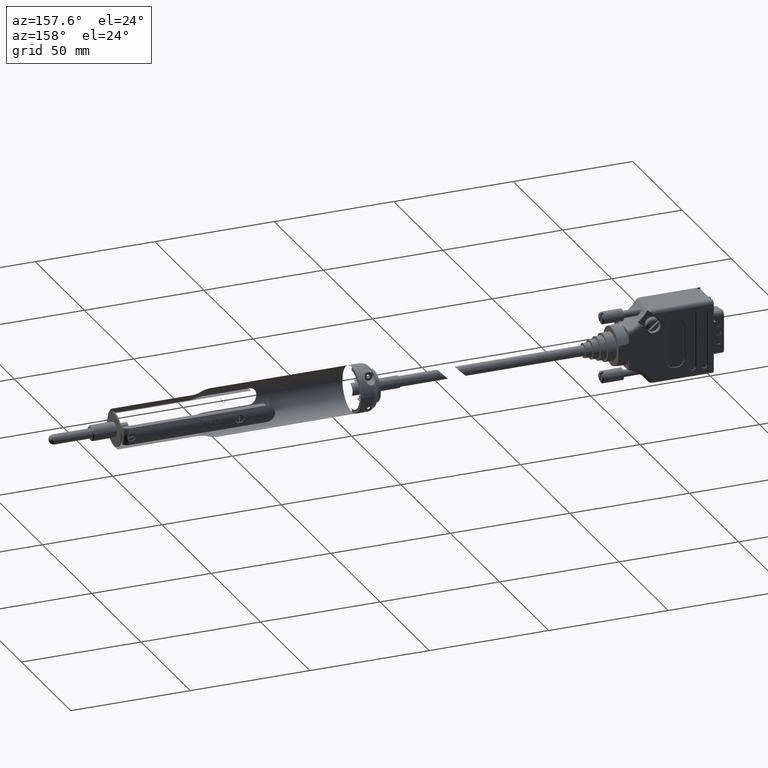
[diagram: clean part render]
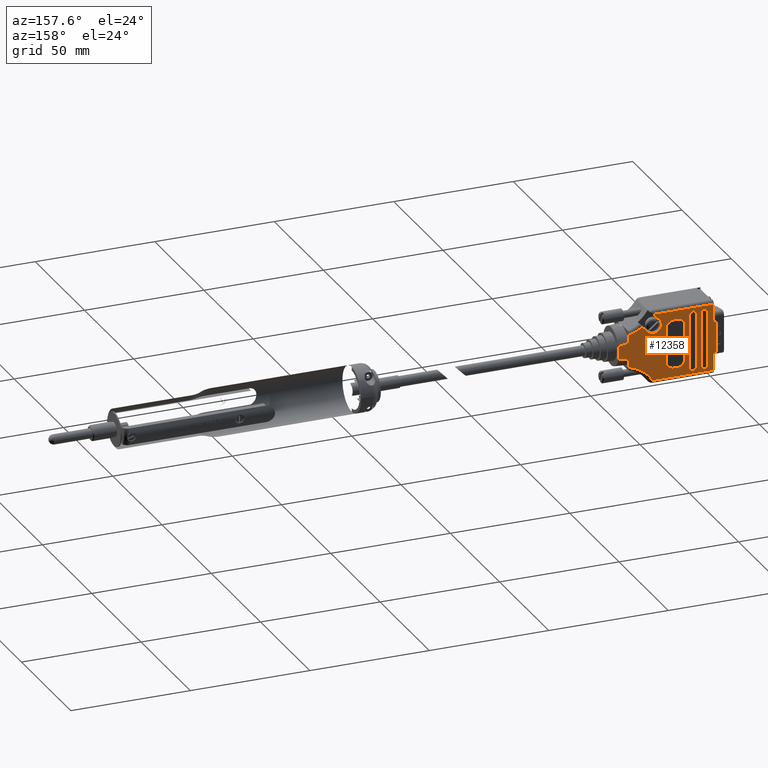
[diagram: same view with one face highlighted and labeled with its STEP entity id]
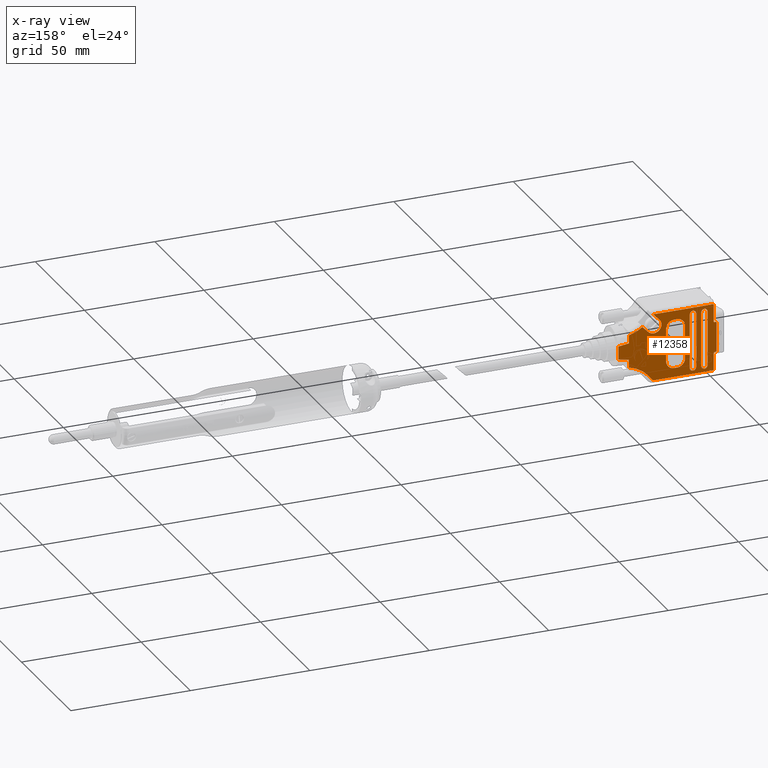
[diagram: x-ray of the same camera — body ghosted, the highlighted face saturated]
A machine part, auxiliary view. The second image highlights one B-rep face of the part: STEP entity #12358.
The next image is the same camera in x-ray: the body ghosted, the highlighted face saturated — about 0% of this face is hidden behind the body in this view.
In plain terms, the highlighted planar face has unit normal (0, 1, 0).
Its self-contained STEP definition (entity closure, byte-faithful):
#599 = DIRECTION ( 'NONE',  ( 0.0000000000000000000, 1.000000000000000000, 0.0000000000000000000 ) ) ;
#600 = DIRECTION ( 'NONE',  ( 0.0000000000000000000, 0.0000000000000000000, 1.000000000000000000 ) ) ;
#619 = DIRECTION ( 'NONE',  ( -0.0000000000000000000, -1.000000000000000000, -0.0000000000000000000 ) ) ;
#636 = CARTESIAN_POINT ( 'NONE',  ( -123.0914605572637700, 7.493000000000001200, -13.46799999999999800 ) ) ;
#700 = CARTESIAN_POINT ( 'NONE',  ( -109.3504522141959800, 7.493000000000001200, -22.24845647764062700 ) ) ;
#735 = DIRECTION ( 'NONE',  ( -1.000000000000000000, 0.0000000000000000000, 0.0000000000000000000 ) ) ;
#763 = CARTESIAN_POINT ( 'NONE',  ( -148.3707333333333300, 7.493000000000001200, 15.50000000000000000 ) ) ;
#766 = DIRECTION ( 'NONE',  ( -1.000000000000000000, 0.0000000000000000000, 0.0000000000000000000 ) ) ;
#775 = CARTESIAN_POINT ( 'NONE',  ( -148.3707333333333300, 7.493000000000001200, -13.97599999999999900 ) ) ;
#804 = DIRECTION ( 'NONE',  ( -1.000000000000000000, 0.0000000000000000000, -1.756815430009172300E-015 ) ) ;
#851 = CARTESIAN_POINT ( 'NONE',  ( -123.2755333333333400, 7.493000000000001200, 9.093200000000003100 ) ) ;
#852 = DIRECTION ( 'NONE',  ( -0.0000000000000000000, -1.000000000000000000, -0.0000000000000000000 ) ) ;
#853 = DIRECTION ( 'NONE',  ( -1.000000000000000000, 0.0000000000000000000, 0.0000000000000000000 ) ) ;
#862 = DIRECTION ( 'NONE',  ( 0.0000000000000000000, 0.0000000000000000000, 1.000000000000000000 ) ) ;
#866 = CARTESIAN_POINT ( 'NONE',  ( -148.3707333333333300, 7.493000000000001200, 15.50000000000000000 ) ) ;
#878 = CARTESIAN_POINT ( 'NONE',  ( -148.3707333333333300, 7.493000000000001200, 6.349999999999999600 ) ) ;
#879 = CARTESIAN_POINT ( 'NONE',  ( -148.7517333333333300, 7.493000000000001200, 6.730999999999999900 ) ) ;
#880 = DIRECTION ( 'NONE',  ( -0.0000000000000000000, -1.000000000000000000, -0.0000000000000000000 ) ) ;
#881 = DIRECTION ( 'NONE',  ( -1.000000000000000000, 0.0000000000000000000, 0.0000000000000000000 ) ) ;
#883 = DIRECTION ( 'NONE',  ( -1.000000000000000000, 0.0000000000000000000, 0.0000000000000000000 ) ) ;
#892 = CARTESIAN_POINT ( 'NONE',  ( -149.1581333333333200, 7.493000000000001200, 5.968999999999999400 ) ) ;
#893 = DIRECTION ( 'NONE',  ( 0.0000000000000000000, 1.000000000000000000, 0.0000000000000000000 ) ) ;
#894 = DIRECTION ( 'NONE',  ( -1.000000000000000000, 0.0000000000000000000, 0.0000000000000000000 ) ) ;
#895 = DIRECTION ( 'NONE',  ( 0.0000000000000000000, -0.0000000000000000000, -1.000000000000000000 ) ) ;
#898 = CARTESIAN_POINT ( 'NONE',  ( -149.5391333333333500, 7.493000000000001200, 6.349999999999999600 ) ) ;
#906 = CARTESIAN_POINT ( 'NONE',  ( -149.1581333333333200, 7.493000000000001200, -5.969000000000000300 ) ) ;
#907 = DIRECTION ( 'NONE',  ( 0.0000000000000000000, 1.000000000000000000, 0.0000000000000000000 ) ) ;
#908 = DIRECTION ( 'NONE',  ( -1.000000000000000000, 0.0000000000000000000, 0.0000000000000000000 ) ) ;
#909 = DIRECTION ( 'NONE',  ( -1.000000000000000000, 0.0000000000000000000, 0.0000000000000000000 ) ) ;
#910 = CARTESIAN_POINT ( 'NONE',  ( -148.3707333333333300, 7.493000000000001200, -6.349999999999999600 ) ) ;
#941 = CARTESIAN_POINT ( 'NONE',  ( -148.7517333333333300, 7.493000000000001200, -6.731000000000000800 ) ) ;
#943 = DIRECTION ( 'NONE',  ( -0.0000000000000000000, -1.000000000000000000, -0.0000000000000000000 ) ) ;
#944 = DIRECTION ( 'NONE',  ( -1.000000000000000000, 0.0000000000000000000, 0.0000000000000000000 ) ) ;
#979 = CARTESIAN_POINT ( 'NONE',  ( -112.8869333333333500, 7.493000000000001200, 13.46799999999999800 ) ) ;
#981 = DIRECTION ( 'NONE',  ( 0.0000000000000000000, 0.0000000000000000000, 1.000000000000000000 ) ) ;
#982 = CARTESIAN_POINT ( 'NONE',  ( -109.9380416134310100, 7.493000000000001200, 3.025334475568169300 ) ) ;
#997 = CARTESIAN_POINT ( 'NONE',  ( -111.4119144322817000, 7.493000000000001200, 3.223821329420901700 ) ) ;
#1002 = CARTESIAN_POINT ( 'NONE',  ( -108.4673333333333300, 7.493000000000001200, 2.805521698365618800 ) ) ;
#1003 = CARTESIAN_POINT ( 'NONE',  ( -112.8869333333333500, 7.493000000000001200, 3.410426141520471100 ) ) ;
#1027 = DIRECTION ( 'NONE',  ( 0.0000000000000000000, 0.0000000000000000000, -1.000000000000000000 ) ) ;
#1031 = CARTESIAN_POINT ( 'NONE',  ( -108.4673333333333300, 7.493000000000001200, 8.000999999999999400 ) ) ;
#1041 = CARTESIAN_POINT ( 'NONE',  ( -111.4119144322816900, 7.493000000000001200, -3.223821329420903000 ) ) ;
#1042 = CARTESIAN_POINT ( 'NONE',  ( -109.9380416134310100, 7.493000000000001200, -3.025334475568167500 ) ) ;
#1049 = CARTESIAN_POINT ( 'NONE',  ( -112.8869333333333500, 7.493000000000001200, -3.410426141520471100 ) ) ;
#1051 = CARTESIAN_POINT ( 'NONE',  ( -108.4673333333333300, 7.493000000000001200, -2.805521698365618800 ) ) ;
#1069 = CARTESIAN_POINT ( 'NONE',  ( -112.8869333333333500, 7.493000000000001200, 13.46799999999999800 ) ) ;
#1076 = DIRECTION ( 'NONE',  ( 0.0000000000000000000, 0.0000000000000000000, 1.000000000000000000 ) ) ;
#2050 = AXIS2_PLACEMENT_3D ( 'NONE', #851, #852, #853 ) ;
#2056 = AXIS2_PLACEMENT_3D ( 'NONE', #879, #880, #881 ) ;
#2057 = AXIS2_PLACEMENT_3D ( 'NONE', #892, #893, #894 ) ;
#2059 = AXIS2_PLACEMENT_3D ( 'NONE', #906, #907, #908 ) ;
#2062 = AXIS2_PLACEMENT_3D ( 'NONE', #941, #943, #944 ) ;
#4150 = CIRCLE ( 'NONE', #21862, 1.358899999999996200 ) ;
#4151 = LINE ( 'NONE', #16288, #4154 ) ;
#4152 = CIRCLE ( 'NONE', #21868, 1.358899999999996200 ) ;
#4154 = VECTOR ( 'NONE', #16278, 1000.000000000000000 ) ;
#4156 = LINE ( 'NONE', #16293, #4158 ) ;
#4158 = VECTOR ( 'NONE', #16292, 1000.000000000000000 ) ;
#4180 = CIRCLE ( 'NONE', #21883, 1.358899999999996200 ) ;
#4181 = LINE ( 'NONE', #16338, #4184 ) ;
#4182 = CIRCLE ( 'NONE', #21889, 1.358899999999996200 ) ;
#4184 = VECTOR ( 'NONE', #16328, 1000.000000000000000 ) ;
#4186 = LINE ( 'NONE', #16343, #4188 ) ;
#4187 = LINE ( 'NONE', #16350, #4190 ) ;
#4188 = VECTOR ( 'NONE', #16342, 1000.000000000000000 ) ;
#4189 = CIRCLE ( 'NONE', #21892, 15.79880000000000200 ) ;
#4190 = VECTOR ( 'NONE', #16351, 1000.000000000000100 ) ;
#4858 = FACE_BOUND ( 'NONE', #15204, .T. ) ;
#4859 = FACE_BOUND ( 'NONE', #15025, .T. ) ;
#4861 = FACE_OUTER_BOUND ( 'NONE', #15123, .T. ) ;
#4862 = FACE_BOUND ( 'NONE', #15110, .T. ) ;
#9338 = AXIS2_PLACEMENT_3D ( 'NONE', #21859, #21861, #21863 ) ;
#9806 = EDGE_CURVE ( 'NONE', #26646, #26629, #21289, .T. ) ;
#9808 = EDGE_CURVE ( 'NONE', #26629, #26630, #21288, .T. ) ;
#9810 = EDGE_CURVE ( 'NONE', #26630, #26787, #21290, .T. ) ;
#9812 = EDGE_CURVE ( 'NONE', #26787, #26941, #21292, .T. ) ;
#9853 = EDGE_CURVE ( 'NONE', #26951, #26591, #21372, .T. ) ;
#9857 = EDGE_CURVE ( 'NONE', #26594, #26588, #21378, .T. ) ;
#9858 = EDGE_CURVE ( 'NONE', #26588, #26968, #21381, .T. ) ;
#9876 = EDGE_CURVE ( 'NONE', #26591, #26594, #21403, .T. ) ;
#9902 = EDGE_CURVE ( 'NONE', #26560, #26563, #21442, .T. ) ;
#9905 = EDGE_CURVE ( 'NONE', #26563, #26561, #21446, .T. ) ;
#9907 = EDGE_CURVE ( 'NONE', #26561, #26562, #21448, .T. ) ;
#9909 = EDGE_CURVE ( 'NONE', #26562, #26557, #21451, .T. ) ;
#9911 = EDGE_CURVE ( 'NONE', #26557, #26556, #21453, .T. ) ;
#9913 = EDGE_CURVE ( 'NONE', #26556, #26559, #21456, .T. ) ;
#9915 = EDGE_CURVE ( 'NONE', #26559, #26564, #21458, .T. ) ;
#9916 = EDGE_CURVE ( 'NONE', #26564, #26560, #21462, .T. ) ;
#9940 = AXIS2_PLACEMENT_3D ( 'NONE', #700, #619, #804 ) ;
#9942 = AXIS2_PLACEMENT_3D ( 'NONE', #636, #599, #766 ) ;
#9950 = AXIS2_PLACEMENT_3D ( 'NONE', #20708, #20632, #20712 ) ;
#9957 = AXIS2_PLACEMENT_3D ( 'NONE', #20705, #20669, #20582 ) ;
#9967 = AXIS2_PLACEMENT_3D ( 'NONE', #20663, #20746, #20750 ) ;
#9971 = AXIS2_PLACEMENT_3D ( 'NONE', #20336, #20335, #20357 ) ;
#9974 = AXIS2_PLACEMENT_3D ( 'NONE', #20331, #20332, #20334 ) ;
#9977 = AXIS2_PLACEMENT_3D ( 'NONE', #20391, #20393, #20396 ) ;
#12358 = ADVANCED_FACE ( 'NONE', ( #4858, #4862, #4859, #4861 ), #21847, .T. ) ;
#14644 = EDGE_CURVE ( 'NONE', #26968, #26676, #28497, .T. ) ;
#14651 = EDGE_CURVE ( 'NONE', #26793, #26951, #28500, .T. ) ;
#14656 = EDGE_CURVE ( 'NONE', #26670, #26793, #28510, .T. ) ;
#14660 = EDGE_CURVE ( 'NONE', #26670, #26959, #28505, .T. ) ;
#14667 = EDGE_CURVE ( 'NONE', #26792, #26959, #28522, .T. ) ;
#14670 = EDGE_CURVE ( 'NONE', #26792, #26672, #28525, .T. ) ;
#14674 = EDGE_CURVE ( 'NONE', #26962, #26672, #28532, .T. ) ;
#14680 = EDGE_CURVE ( 'NONE', #26671, #26962, #28535, .T. ) ;
#14689 = EDGE_CURVE ( 'NONE', #26941, #26671, #28548, .T. ) ;
#14699 = EDGE_CURVE ( 'NONE', #26937, #26936, #28557, .T. ) ;
#14710 = EDGE_CURVE ( 'NONE', #26791, #26937, #20179, .T. ) ;
#14718 = EDGE_CURVE ( 'NONE', #26791, #26665, #28561, .T. ) ;
#14728 = EDGE_CURVE ( 'NONE', #26929, #26665, #20182, .T. ) ;
#14734 = EDGE_CURVE ( 'NONE', #26646, #26929, #28583, .T. ) ;
#15025 = EDGE_LOOP ( 'NONE', ( #24673, #24693, #24691, #24675, #24745, #24713, #24711, #24709 ) ) ;
#15110 = EDGE_LOOP ( 'NONE', ( #24689, #24687, #24697, #24695 ) ) ;
#15123 = EDGE_LOOP ( 'NONE', ( #24703, #24655, #24715, #24659, #24647, #24657, #24741, #24671, #24669, #24667, #24739, #24737, #24735, #24649, #27137, #24723, #25113, #25129, #25084, #25086, #25112, #24993, #25102, #27165 ) ) ;
#15204 = EDGE_LOOP ( 'NONE', ( #24663, #24661, #24749, #24653 ) ) ;
#16278 = DIRECTION ( 'NONE',  ( 0.0000000000000000000, 0.0000000000000000000, 1.000000000000000000 ) ) ;
#16285 = CARTESIAN_POINT ( 'NONE',  ( -139.6839333333333600, 7.493000000000001200, -11.29030000000000000 ) ) ;
#16286 = DIRECTION ( 'NONE',  ( -0.0000000000000000000, -1.000000000000000000, -0.0000000000000000000 ) ) ;
#16287 = DIRECTION ( 'NONE',  ( -1.000000000000000000, 0.0000000000000000000, 0.0000000000000000000 ) ) ;
#16288 = CARTESIAN_POINT ( 'NONE',  ( -138.3250333333333500, 7.493000000000001200, 13.46799999999999800 ) ) ;
#16292 = DIRECTION ( 'NONE',  ( 6.145889749525901300E-016, 0.0000000000000000000, -1.000000000000000000 ) ) ;
#16293 = CARTESIAN_POINT ( 'NONE',  ( -141.0428333333333300, 7.493000000000001200, 13.46799999999998800 ) ) ;
#16298 = CARTESIAN_POINT ( 'NONE',  ( -139.6839333333333600, 7.493000000000001200, 11.29030000000000000 ) ) ;
#16299 = DIRECTION ( 'NONE',  ( -0.0000000000000000000, -1.000000000000000000, -0.0000000000000000000 ) ) ;
#16300 = DIRECTION ( 'NONE',  ( -1.000000000000000000, 0.0000000000000000000, 0.0000000000000000000 ) ) ;
#16328 = DIRECTION ( 'NONE',  ( 0.0000000000000000000, 0.0000000000000000000, 1.000000000000000000 ) ) ;
#16335 = CARTESIAN_POINT ( 'NONE',  ( -144.4591333333333400, 7.493000000000001200, -11.29030000000000000 ) ) ;
#16336 = DIRECTION ( 'NONE',  ( -0.0000000000000000000, -1.000000000000000000, -0.0000000000000000000 ) ) ;
#16337 = DIRECTION ( 'NONE',  ( -1.000000000000000000, 0.0000000000000000000, 0.0000000000000000000 ) ) ;
#16338 = CARTESIAN_POINT ( 'NONE',  ( -143.1002333333333400, 7.493000000000001200, 13.46799999999999800 ) ) ;
#16342 = DIRECTION ( 'NONE',  ( 6.145889749525901300E-016, 0.0000000000000000000, -1.000000000000000000 ) ) ;
#16343 = CARTESIAN_POINT ( 'NONE',  ( -145.8180333333333500, 7.493000000000001200, 13.46799999999998400 ) ) ;
#16347 = CARTESIAN_POINT ( 'NONE',  ( -144.4591333333333400, 7.493000000000001200, 11.29030000000000000 ) ) ;
#16348 = DIRECTION ( 'NONE',  ( -0.0000000000000000000, -1.000000000000000000, -0.0000000000000000000 ) ) ;
#16349 = DIRECTION ( 'NONE',  ( -1.000000000000000000, 0.0000000000000000000, 0.0000000000000000000 ) ) ;
#16350 = CARTESIAN_POINT ( 'NONE',  ( -118.5035376176227300, 7.493000000000001200, 9.321186118449624300 ) ) ;
#16351 = DIRECTION ( 'NONE',  ( 0.7071067811865483500, -0.0000000000000000000, 0.7071067811865465700 ) ) ;
#16354 = CARTESIAN_POINT ( 'NONE',  ( -109.3504522141959800, 7.493000000000001200, 22.24845647764062700 ) ) ;
#16355 = DIRECTION ( 'NONE',  ( -0.0000000000000000000, -1.000000000000000000, -0.0000000000000000000 ) ) ;
#16356 = DIRECTION ( 'NONE',  ( -1.000000000000000000, 0.0000000000000000000, 8.784077150045861700E-016 ) ) ;
#16377 = CARTESIAN_POINT ( 'NONE',  ( -145.8180333333333500, 7.493000000000001200, 11.29030000000000000 ) ) ;
#16378 = CARTESIAN_POINT ( 'NONE',  ( -143.1002333333333400, 7.493000000000001200, 11.29030000000000000 ) ) ;
#16379 = CARTESIAN_POINT ( 'NONE',  ( -143.1002333333333400, 7.493000000000001200, -11.29030000000000000 ) ) ;
#16381 = CARTESIAN_POINT ( 'NONE',  ( -145.8180333333333200, 7.493000000000001200, -11.29030000000000000 ) ) ;
#16387 = CARTESIAN_POINT ( 'NONE',  ( -141.0428333333333300, 7.493000000000001200, 11.29030000000000000 ) ) ;
#16389 = CARTESIAN_POINT ( 'NONE',  ( -138.3250333333333500, 7.493000000000001200, 11.29030000000000000 ) ) ;
#16391 = CARTESIAN_POINT ( 'NONE',  ( -138.3250333333333500, 7.493000000000001200, -11.29030000000000000 ) ) ;
#16393 = CARTESIAN_POINT ( 'NONE',  ( -141.0428333333333300, 7.493000000000001200, -11.29030000000000000 ) ) ;
#16401 = CARTESIAN_POINT ( 'NONE',  ( -133.0291333333333300, 7.493000000000001200, -10.23619999999999800 ) ) ;
#16402 = CARTESIAN_POINT ( 'NONE',  ( -136.3311333333333600, 7.493000000000001200, -6.934199999999975700 ) ) ;
#16404 = CARTESIAN_POINT ( 'NONE',  ( -131.7591333333333500, 7.493000000000001200, -10.23619999999999800 ) ) ;
#16405 = CARTESIAN_POINT ( 'NONE',  ( -128.4571333333333300, 7.493000000000001200, 6.934199999999979300 ) ) ;
#16406 = CARTESIAN_POINT ( 'NONE',  ( -133.0291333333333300, 7.493000000000001200, 10.23620000000000200 ) ) ;
#16407 = CARTESIAN_POINT ( 'NONE',  ( -136.3311333333333600, 7.493000000000001200, 6.934199999999979300 ) ) ;
#16408 = CARTESIAN_POINT ( 'NONE',  ( -131.7591333333333500, 7.493000000000001200, 10.23620000000000200 ) ) ;
#16409 = CARTESIAN_POINT ( 'NONE',  ( -128.4571333333333300, 7.493000000000001200, -6.934199999999975700 ) ) ;
#18773 = CARTESIAN_POINT ( 'NONE',  ( -125.5475381319638500, 7.493000000000001200, 11.36520479863050200 ) ) ;
#18776 = CARTESIAN_POINT ( 'NONE',  ( -123.0914605572637700, 7.493000000000001200, 13.97600000000000100 ) ) ;
#18779 = CARTESIAN_POINT ( 'NONE',  ( -122.9553240414413600, 7.493000000000001200, 13.95741888915297000 ) ) ;
#18788 = CARTESIAN_POINT ( 'NONE',  ( -118.4742599129533900, 7.493000000000001200, 9.350463823118953900 ) ) ;
#18814 = CARTESIAN_POINT ( 'NONE',  ( -122.6633917615295700, 7.493000000000001200, -13.74153446970842800 ) ) ;
#18815 = CARTESIAN_POINT ( 'NONE',  ( -123.0914605572637700, 7.493000000000001200, -13.97599999999999900 ) ) ;
#18831 = CARTESIAN_POINT ( 'NONE',  ( -112.8869333333333500, 7.493000000000001200, -6.850554583746608200 ) ) ;
#18850 = CARTESIAN_POINT ( 'NONE',  ( -108.4673333333333300, 7.493000000000001200, -2.805521698365618800 ) ) ;
#18855 = CARTESIAN_POINT ( 'NONE',  ( -148.7517333333333300, 7.493000000000001200, 6.349999999999999600 ) ) ;
#18856 = CARTESIAN_POINT ( 'NONE',  ( -148.7517333333333300, 7.493000000000001200, -6.349999999999999600 ) ) ;
#18857 = CARTESIAN_POINT ( 'NONE',  ( -149.5391333333333500, 7.493000000000001200, -5.969000000000000300 ) ) ;
#18861 = CARTESIAN_POINT ( 'NONE',  ( -121.0035285347028500, 7.493000000000001200, 6.821195201369504500 ) ) ;
#18972 = CARTESIAN_POINT ( 'NONE',  ( -148.3707333333333300, 7.493000000000001200, -13.97599999999999900 ) ) ;
#18976 = CARTESIAN_POINT ( 'NONE',  ( -108.4673333333333300, 7.493000000000001200, 2.805521698365618800 ) ) ;
#18977 = CARTESIAN_POINT ( 'NONE',  ( -149.5391333333333500, 7.493000000000001200, 5.968999999999999400 ) ) ;
#18978 = CARTESIAN_POINT ( 'NONE',  ( -148.3707333333333300, 7.493000000000001200, 6.731000000000000800 ) ) ;
#19114 = CARTESIAN_POINT ( 'NONE',  ( -112.8869333333333500, 7.493000000000001200, -3.410426141520471100 ) ) ;
#19121 = CARTESIAN_POINT ( 'NONE',  ( -112.8869333333333500, 7.493000000000001200, 6.850554583746608200 ) ) ;
#19122 = CARTESIAN_POINT ( 'NONE',  ( -112.8869333333333500, 7.493000000000001200, 3.410426141520471100 ) ) ;
#19126 = CARTESIAN_POINT ( 'NONE',  ( -148.3707333333333300, 7.493000000000001200, -6.731000000000000800 ) ) ;
#19136 = CARTESIAN_POINT ( 'NONE',  ( -148.3707333333333300, 7.493000000000001200, 13.97600000000000100 ) ) ;
#19144 = CARTESIAN_POINT ( 'NONE',  ( -149.1581333333333200, 7.493000000000001200, 6.349999999999999600 ) ) ;
#19147 = CARTESIAN_POINT ( 'NONE',  ( -149.1581333333333200, 7.493000000000001200, -6.349999999999999600 ) ) ;
#19153 = CARTESIAN_POINT ( 'NONE',  ( -126.4886333333333500, 7.493000000000001200, 9.093200000000003100 ) ) ;
#20179 = B_SPLINE_CURVE_WITH_KNOTS ( 'NONE', 3,
 ( #1002, #982, #997, #1003 ),
 .UNSPECIFIED., .F., .F.,
 ( 4, 4 ),
 ( 0.005929499921955137600, 0.01038899610469911500 ),
 .UNSPECIFIED. ) ;
#20182 = B_SPLINE_CURVE_WITH_KNOTS ( 'NONE', 3,
 ( #1049, #1041, #1042, #1051 ),
 .UNSPECIFIED., .F., .F.,
 ( 4, 4 ),
 ( 0.009291819051618252800, 0.01375203743031553800 ),
 .UNSPECIFIED. ) ;
#20323 = DIRECTION ( 'NONE',  ( 1.000000000000000000, 0.0000000000000000000, 0.0000000000000000000 ) ) ;
#20331 = CARTESIAN_POINT ( 'NONE',  ( -133.0291333333333600, 7.493000000000001200, -6.934199999999998800 ) ) ;
#20332 = DIRECTION ( 'NONE',  ( -0.0000000000000000000, -1.000000000000000000, -0.0000000000000000000 ) ) ;
#20334 = DIRECTION ( 'NONE',  ( -1.000000000000000000, 0.0000000000000000000, 0.0000000000000000000 ) ) ;
#20335 = DIRECTION ( 'NONE',  ( -0.0000000000000000000, -1.000000000000000000, -0.0000000000000000000 ) ) ;
#20336 = CARTESIAN_POINT ( 'NONE',  ( -133.0291333333333300, 7.493000000000001200, 6.934200000000001500 ) ) ;
#20339 = DIRECTION ( 'NONE',  ( 1.000000000000000000, -0.0000000000000000000, -0.0000000000000000000 ) ) ;
#20345 = CARTESIAN_POINT ( 'NONE',  ( -136.3311333333333600, 7.493000000000001200, -6.934199999999975700 ) ) ;
#20357 = DIRECTION ( 'NONE',  ( -1.000000000000000000, 0.0000000000000000000, 0.0000000000000000000 ) ) ;
#20359 = DIRECTION ( 'NONE',  ( -2.501692301890359400E-016, -0.0000000000000000000, -1.000000000000000000 ) ) ;
#20366 = CARTESIAN_POINT ( 'NONE',  ( -125.5475381319638500, 7.493000000000001200, 11.36520479863050100 ) ) ;
#20385 = CARTESIAN_POINT ( 'NONE',  ( -131.7591333333333500, 7.493000000000001200, -10.23619999999999800 ) ) ;
#20389 = DIRECTION ( 'NONE',  ( -0.0000000000000000000, -0.0000000000000000000, 1.000000000000000000 ) ) ;
#20390 = CARTESIAN_POINT ( 'NONE',  ( -128.4571333333333300, 7.493000000000001200, 6.934199999999981000 ) ) ;
#20391 = CARTESIAN_POINT ( 'NONE',  ( -131.7591333333333200, 7.493000000000001200, -6.934199999999997900 ) ) ;
#20393 = DIRECTION ( 'NONE',  ( -0.0000000000000000000, -1.000000000000000000, -0.0000000000000000000 ) ) ;
#20395 = DIRECTION ( 'NONE',  ( -0.7071067811865489100, -0.0000000000000000000, -0.7071067811865460200 ) ) ;
#20396 = DIRECTION ( 'NONE',  ( -1.000000000000000000, 0.0000000000000000000, 7.880330750954606000E-016 ) ) ;
#20555 = CARTESIAN_POINT ( 'NONE',  ( -133.0291333333333300, 7.493000000000001200, 10.23620000000000200 ) ) ;
#20582 = DIRECTION ( 'NONE',  ( -1.000000000000000000, 0.0000000000000000000, 0.0000000000000000000 ) ) ;
#20632 = DIRECTION ( 'NONE',  ( -0.0000000000000000000, -1.000000000000000000, -0.0000000000000000000 ) ) ;
#20654 = DIRECTION ( 'NONE',  ( -1.000000000000000000, -0.0000000000000000000, -0.0000000000000000000 ) ) ;
#20663 = CARTESIAN_POINT ( 'NONE',  ( -131.7591333333333200, 7.493000000000001200, 6.934200000000001500 ) ) ;
#20669 = DIRECTION ( 'NONE',  ( 0.0000000000000000000, 1.000000000000000000, 0.0000000000000000000 ) ) ;
#20705 = CARTESIAN_POINT ( 'NONE',  ( -123.0914605572637700, 7.493000000000001200, 13.46799999999999800 ) ) ;
#20707 = CARTESIAN_POINT ( 'NONE',  ( -123.0914605572637700, 7.493000000000001200, 13.97600000000000100 ) ) ;
#20708 = CARTESIAN_POINT ( 'NONE',  ( -123.2755333333333400, 7.493000000000001200, 9.093200000000003100 ) ) ;
#20712 = DIRECTION ( 'NONE',  ( -1.000000000000000000, 0.0000000000000000000, 1.511694541948599100E-014 ) ) ;
#20746 = DIRECTION ( 'NONE',  ( -0.0000000000000000000, -1.000000000000000000, -0.0000000000000000000 ) ) ;
#20750 = DIRECTION ( 'NONE',  ( -1.000000000000000000, 0.0000000000000000000, -7.880330750954606000E-016 ) ) ;
#21288 = CIRCLE ( 'NONE', #9942, 0.5079999999999945700 ) ;
#21289 = CIRCLE ( 'NONE', #9940, 15.79880000000000200 ) ;
#21290 = LINE ( 'NONE', #775, #21294 ) ;
#21292 = LINE ( 'NONE', #763, #21298 ) ;
#21294 = VECTOR ( 'NONE', #735, 1000.000000000000000 ) ;
#21298 = VECTOR ( 'NONE', #600, 1000.000000000000000 ) ;
#21372 = LINE ( 'NONE', #20707, #21376 ) ;
#21376 = VECTOR ( 'NONE', #20323, 1000.000000000000000 ) ;
#21378 = LINE ( 'NONE', #20366, #21382 ) ;
#21381 = CIRCLE ( 'NONE', #9950, 3.213100000000010500 ) ;
#21382 = VECTOR ( 'NONE', #20395, 1000.000000000000100 ) ;
#21403 = CIRCLE ( 'NONE', #9957, 0.5079999999999945700 ) ;
#21442 = CIRCLE ( 'NONE', #9967, 3.301999999999999600 ) ;
#21446 = LINE ( 'NONE', #20555, #21450 ) ;
#21448 = CIRCLE ( 'NONE', #9971, 3.301999999999999600 ) ;
#21450 = VECTOR ( 'NONE', #20654, 1000.000000000000000 ) ;
#21451 = LINE ( 'NONE', #20345, #21455 ) ;
#21453 = CIRCLE ( 'NONE', #9974, 3.301999999999999600 ) ;
#21455 = VECTOR ( 'NONE', #20359, 1000.000000000000000 ) ;
#21456 = LINE ( 'NONE', #20385, #21460 ) ;
#21458 = CIRCLE ( 'NONE', #9977, 3.301999999999999600 ) ;
#21460 = VECTOR ( 'NONE', #20339, 1000.000000000000000 ) ;
#21462 = LINE ( 'NONE', #20390, #21464 ) ;
#21464 = VECTOR ( 'NONE', #20389, 1000.000000000000000 ) ;
#21847 = PLANE ( 'NONE',  #9338 ) ;
#21859 = CARTESIAN_POINT ( 'NONE',  ( -123.0914605572637700, 7.493000000000001200, 13.46799999999999800 ) ) ;
#21861 = DIRECTION ( 'NONE',  ( 0.0000000000000000000, 1.000000000000000000, 0.0000000000000000000 ) ) ;
#21862 = AXIS2_PLACEMENT_3D ( 'NONE', #16285, #16286, #16287 ) ;
#21863 = DIRECTION ( 'NONE',  ( -1.000000000000000000, 0.0000000000000000000, 0.0000000000000000000 ) ) ;
#21868 = AXIS2_PLACEMENT_3D ( 'NONE', #16298, #16299, #16300 ) ;
#21883 = AXIS2_PLACEMENT_3D ( 'NONE', #16335, #16336, #16337 ) ;
#21889 = AXIS2_PLACEMENT_3D ( 'NONE', #16347, #16348, #16349 ) ;
#21892 = AXIS2_PLACEMENT_3D ( 'NONE', #16354, #16355, #16356 ) ;
#24647 = ORIENTED_EDGE ( 'NONE', *, *, #25396, .T. ) ;
#24649 = ORIENTED_EDGE ( 'NONE', *, *, #9810, .T. ) ;
#24653 = ORIENTED_EDGE ( 'NONE', *, *, #25392, .T. ) ;
#24655 = ORIENTED_EDGE ( 'NONE', *, *, #9857, .T. ) ;
#24657 = ORIENTED_EDGE ( 'NONE', *, *, #25399, .T. ) ;
#24659 = ORIENTED_EDGE ( 'NONE', *, *, #14644, .T. ) ;
#24661 = ORIENTED_EDGE ( 'NONE', *, *, #25382, .T. ) ;
#24663 = ORIENTED_EDGE ( 'NONE', *, *, #25394, .T. ) ;
#24667 = ORIENTED_EDGE ( 'NONE', *, *, #14728, .F. ) ;
#24669 = ORIENTED_EDGE ( 'NONE', *, *, #14718, .T. ) ;
#24671 = ORIENTED_EDGE ( 'NONE', *, *, #14710, .F. ) ;
#24673 = ORIENTED_EDGE ( 'NONE', *, *, #9916, .T. ) ;
#24675 = ORIENTED_EDGE ( 'NONE', *, *, #9907, .T. ) ;
#24687 = ORIENTED_EDGE ( 'NONE', *, *, #25362, .T. ) ;
#24689 = ORIENTED_EDGE ( 'NONE', *, *, #25367, .T. ) ;
#24691 = ORIENTED_EDGE ( 'NONE', *, *, #9905, .T. ) ;
#24693 = ORIENTED_EDGE ( 'NONE', *, *, #9902, .T. ) ;
#24695 = ORIENTED_EDGE ( 'NONE', *, *, #25366, .T. ) ;
#24697 = ORIENTED_EDGE ( 'NONE', *, *, #25364, .T. ) ;
#24703 = ORIENTED_EDGE ( 'NONE', *, *, #9876, .T. ) ;
#24709 = ORIENTED_EDGE ( 'NONE', *, *, #9915, .T. ) ;
#24711 = ORIENTED_EDGE ( 'NONE', *, *, #9913, .T. ) ;
#24713 = ORIENTED_EDGE ( 'NONE', *, *, #9911, .T. ) ;
#24715 = ORIENTED_EDGE ( 'NONE', *, *, #9858, .T. ) ;
#24723 = ORIENTED_EDGE ( 'NONE', *, *, #14689, .T. ) ;
#24735 = ORIENTED_EDGE ( 'NONE', *, *, #9808, .T. ) ;
#24737 = ORIENTED_EDGE ( 'NONE', *, *, #9806, .T. ) ;
#24739 = ORIENTED_EDGE ( 'NONE', *, *, #14734, .F. ) ;
#24741 = ORIENTED_EDGE ( 'NONE', *, *, #14699, .F. ) ;
#24745 = ORIENTED_EDGE ( 'NONE', *, *, #9909, .T. ) ;
#24749 = ORIENTED_EDGE ( 'NONE', *, *, #25387, .T. ) ;
#24993 = ORIENTED_EDGE ( 'NONE', *, *, #14656, .T. ) ;
#25084 = ORIENTED_EDGE ( 'NONE', *, *, #14670, .F. ) ;
#25086 = ORIENTED_EDGE ( 'NONE', *, *, #14667, .T. ) ;
#25102 = ORIENTED_EDGE ( 'NONE', *, *, #14651, .T. ) ;
#25112 = ORIENTED_EDGE ( 'NONE', *, *, #14660, .F. ) ;
#25113 = ORIENTED_EDGE ( 'NONE', *, *, #14680, .T. ) ;
#25129 = ORIENTED_EDGE ( 'NONE', *, *, #14674, .T. ) ;
#25362 = EDGE_CURVE ( 'NONE', #26548, #26546, #4150, .T. ) ;
#25364 = EDGE_CURVE ( 'NONE', #26546, #26544, #4151, .T. ) ;
#25366 = EDGE_CURVE ( 'NONE', #26544, #26542, #4152, .T. ) ;
#25367 = EDGE_CURVE ( 'NONE', #26542, #26548, #4156, .T. ) ;
#25382 = EDGE_CURVE ( 'NONE', #26536, #26534, #4180, .T. ) ;
#25387 = EDGE_CURVE ( 'NONE', #26534, #26532, #4181, .T. ) ;
#25392 = EDGE_CURVE ( 'NONE', #26532, #26530, #4182, .T. ) ;
#25394 = EDGE_CURVE ( 'NONE', #26530, #26536, #4186, .T. ) ;
#25396 = EDGE_CURVE ( 'NONE', #26676, #26603, #4187, .T. ) ;
#25399 = EDGE_CURVE ( 'NONE', #26603, #26936, #4189, .T. ) ;
#26530 = VERTEX_POINT ( 'NONE', #16377 ) ;
#26532 = VERTEX_POINT ( 'NONE', #16378 ) ;
#26534 = VERTEX_POINT ( 'NONE', #16379 ) ;
#26536 = VERTEX_POINT ( 'NONE', #16381 ) ;
#26542 = VERTEX_POINT ( 'NONE', #16387 ) ;
#26544 = VERTEX_POINT ( 'NONE', #16389 ) ;
#26546 = VERTEX_POINT ( 'NONE', #16391 ) ;
#26548 = VERTEX_POINT ( 'NONE', #16393 ) ;
#26556 = VERTEX_POINT ( 'NONE', #16401 ) ;
#26557 = VERTEX_POINT ( 'NONE', #16402 ) ;
#26559 = VERTEX_POINT ( 'NONE', #16404 ) ;
#26560 = VERTEX_POINT ( 'NONE', #16405 ) ;
#26561 = VERTEX_POINT ( 'NONE', #16406 ) ;
#26562 = VERTEX_POINT ( 'NONE', #16407 ) ;
#26563 = VERTEX_POINT ( 'NONE', #16408 ) ;
#26564 = VERTEX_POINT ( 'NONE', #16409 ) ;
#26588 = VERTEX_POINT ( 'NONE', #18773 ) ;
#26591 = VERTEX_POINT ( 'NONE', #18776 ) ;
#26594 = VERTEX_POINT ( 'NONE', #18779 ) ;
#26603 = VERTEX_POINT ( 'NONE', #18788 ) ;
#26629 = VERTEX_POINT ( 'NONE', #18814 ) ;
#26630 = VERTEX_POINT ( 'NONE', #18815 ) ;
#26646 = VERTEX_POINT ( 'NONE', #18831 ) ;
#26665 = VERTEX_POINT ( 'NONE', #18850 ) ;
#26670 = VERTEX_POINT ( 'NONE', #18855 ) ;
#26671 = VERTEX_POINT ( 'NONE', #18856 ) ;
#26672 = VERTEX_POINT ( 'NONE', #18857 ) ;
#26676 = VERTEX_POINT ( 'NONE', #18861 ) ;
#26787 = VERTEX_POINT ( 'NONE', #18972 ) ;
#26791 = VERTEX_POINT ( 'NONE', #18976 ) ;
#26792 = VERTEX_POINT ( 'NONE', #18977 ) ;
#26793 = VERTEX_POINT ( 'NONE', #18978 ) ;
#26929 = VERTEX_POINT ( 'NONE', #19114 ) ;
#26936 = VERTEX_POINT ( 'NONE', #19121 ) ;
#26937 = VERTEX_POINT ( 'NONE', #19122 ) ;
#26941 = VERTEX_POINT ( 'NONE', #19126 ) ;
#26951 = VERTEX_POINT ( 'NONE', #19136 ) ;
#26959 = VERTEX_POINT ( 'NONE', #19144 ) ;
#26962 = VERTEX_POINT ( 'NONE', #19147 ) ;
#26968 = VERTEX_POINT ( 'NONE', #19153 ) ;
#27137 = ORIENTED_EDGE ( 'NONE', *, *, #9812, .T. ) ;
#27165 = ORIENTED_EDGE ( 'NONE', *, *, #9853, .T. ) ;
#28497 = CIRCLE ( 'NONE', #2050, 3.213100000000010500 ) ;
#28500 = LINE ( 'NONE', #866, #28507 ) ;
#28505 = LINE ( 'NONE', #878, #28515 ) ;
#28507 = VECTOR ( 'NONE', #862, 1000.000000000000000 ) ;
#28510 = CIRCLE ( 'NONE', #2056, 0.3809999999999924600 ) ;
#28515 = VECTOR ( 'NONE', #883, 1000.000000000000000 ) ;
#28522 = CIRCLE ( 'NONE', #2057, 0.3809999999999924600 ) ;
#28525 = LINE ( 'NONE', #898, #28529 ) ;
#28529 = VECTOR ( 'NONE', #895, 1000.000000000000000 ) ;
#28532 = CIRCLE ( 'NONE', #2059, 0.3809999999999924600 ) ;
#28535 = LINE ( 'NONE', #910, #28539 ) ;
#28539 = VECTOR ( 'NONE', #909, 1000.000000000000000 ) ;
#28548 = CIRCLE ( 'NONE', #2062, 0.3809999999999924600 ) ;
#28557 = LINE ( 'NONE', #979, #28560 ) ;
#28560 = VECTOR ( 'NONE', #981, 1000.000000000000000 ) ;
#28561 = LINE ( 'NONE', #1031, #28571 ) ;
#28571 = VECTOR ( 'NONE', #1027, 1000.000000000000000 ) ;
#28583 = LINE ( 'NONE', #1069, #28586 ) ;
#28586 = VECTOR ( 'NONE', #1076, 1000.000000000000000 ) ;